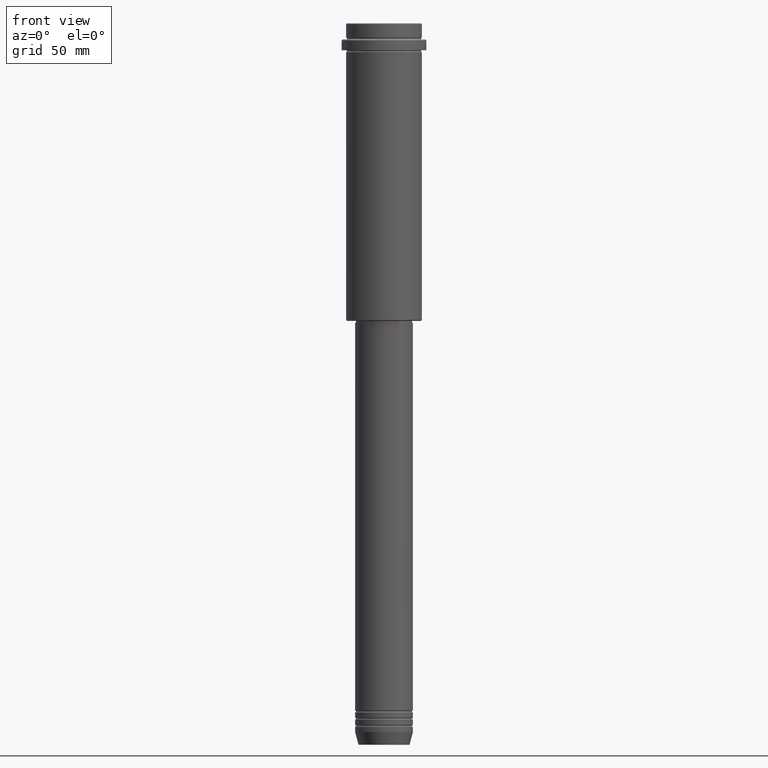
[diagram: clean part render]
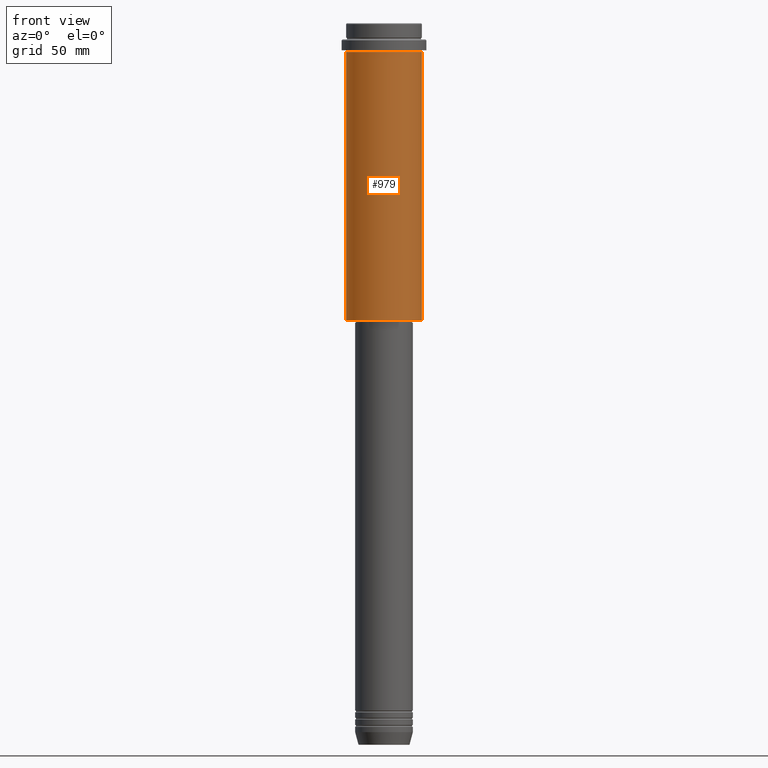
[diagram: same view with one face highlighted and labeled with its STEP entity id]
A machine part, front view. The second image highlights one B-rep face of the part: STEP entity #979.
In plain terms, the highlighted cylindrical surface (partial cylindrical patch) has radius 21 mm, axis along (-0, -0, 1).
Its self-contained STEP definition (entity closure, byte-faithful):
#12 = AXIS2_PLACEMENT_3D ( 'NONE', #540, #1169, #516 ) ;
#43 = CARTESIAN_POINT ( 'NONE',  ( -20.99999999999999645, 2.571758278209441267E-15, -16.00000000000000355 ) ) ;
#46 = ORIENTED_EDGE ( 'NONE', *, *, #646, .F. ) ;
#55 = CARTESIAN_POINT ( 'NONE',  ( -20.99999999999999645, 2.571758278209441267E-15, -164.4999999999999147 ) ) ;
#232 = EDGE_CURVE ( 'NONE', #498, #537, #946, .T. ) ;
#298 = DIRECTION ( 'NONE',  ( -0.000000000000000000, -0.000000000000000000, 1.000000000000000000 ) ) ;
#314 = VERTEX_POINT ( 'NONE', #949 ) ;
#330 = ORIENTED_EDGE ( 'NONE', *, *, #232, .T. ) ;
#333 = AXIS2_PLACEMENT_3D ( 'NONE', #427, #298, #1288 ) ;
#367 = DIRECTION ( 'NONE',  ( 1.000000000000000000, 0.000000000000000000, 0.000000000000000000 ) ) ;
#372 = ORIENTED_EDGE ( 'NONE', *, *, #838, .T. ) ;
#424 = DIRECTION ( 'NONE',  ( -0.000000000000000000, -0.000000000000000000, 1.000000000000000000 ) ) ;
#427 = CARTESIAN_POINT ( 'NONE',  ( 0.000000000000000000, 0.000000000000000000, -164.4999999999999147 ) ) ;
#498 = VERTEX_POINT ( 'NONE', #55 ) ;
#516 = DIRECTION ( 'NONE',  ( 1.000000000000000000, 0.000000000000000000, 0.000000000000000000 ) ) ;
#537 = VERTEX_POINT ( 'NONE', #707 ) ;
#538 = CARTESIAN_POINT ( 'NONE',  ( -20.99999999999999645, 2.571758278209441267E-15, 0.000000000000000000 ) ) ;
#540 = CARTESIAN_POINT ( 'NONE',  ( 0.000000000000000000, 0.000000000000000000, -16.00000000000000355 ) ) ;
#562 = AXIS2_PLACEMENT_3D ( 'NONE', #1268, #1370, #367 ) ;
#575 = VERTEX_POINT ( 'NONE', #43 ) ;
#646 = EDGE_CURVE ( 'NONE', #575, #314, #718, .T. ) ;
#707 = CARTESIAN_POINT ( 'NONE',  ( 20.99999999999999645, 0.000000000000000000, -164.4999999999999147 ) ) ;
#718 = CIRCLE ( 'NONE', #12, 20.99999999999999645 ) ;
#773 = DIRECTION ( 'NONE',  ( -0.000000000000000000, -0.000000000000000000, 1.000000000000000000 ) ) ;
#777 = ORIENTED_EDGE ( 'NONE', *, *, #1157, .F. ) ;
#811 = VECTOR ( 'NONE', #773, 1000.000000000000000 ) ;
#838 = EDGE_CURVE ( 'NONE', #537, #314, #901, .T. ) ;
#901 = LINE ( 'NONE', #1325, #811 ) ;
#946 = CIRCLE ( 'NONE', #333, 20.99999999999999645 ) ;
#949 = CARTESIAN_POINT ( 'NONE',  ( 20.99999999999999645, 0.000000000000000000, -16.00000000000000355 ) ) ;
#979 = ADVANCED_FACE ( 'NONE', ( #1247 ), #1028, .T. ) ;
#1028 = CYLINDRICAL_SURFACE ( 'NONE', #562, 20.99999999999999645 ) ;
#1077 = LINE ( 'NONE', #538, #1089 ) ;
#1089 = VECTOR ( 'NONE', #424, 1000.000000000000000 ) ;
#1157 = EDGE_CURVE ( 'NONE', #498, #575, #1077, .T. ) ;
#1169 = DIRECTION ( 'NONE',  ( -0.000000000000000000, -0.000000000000000000, 1.000000000000000000 ) ) ;
#1247 = FACE_OUTER_BOUND ( 'NONE', #1255, .T. ) ;
#1255 = EDGE_LOOP ( 'NONE', ( #777, #330, #372, #46 ) ) ;
#1268 = CARTESIAN_POINT ( 'NONE',  ( 0.000000000000000000, 0.000000000000000000, 0.000000000000000000 ) ) ;
#1288 = DIRECTION ( 'NONE',  ( -1.000000000000000000, 0.000000000000000000, 0.000000000000000000 ) ) ;
#1325 = CARTESIAN_POINT ( 'NONE',  ( 20.99999999999999645, 0.000000000000000000, 0.000000000000000000 ) ) ;
#1370 = DIRECTION ( 'NONE',  ( -0.000000000000000000, -0.000000000000000000, 1.000000000000000000 ) ) ;